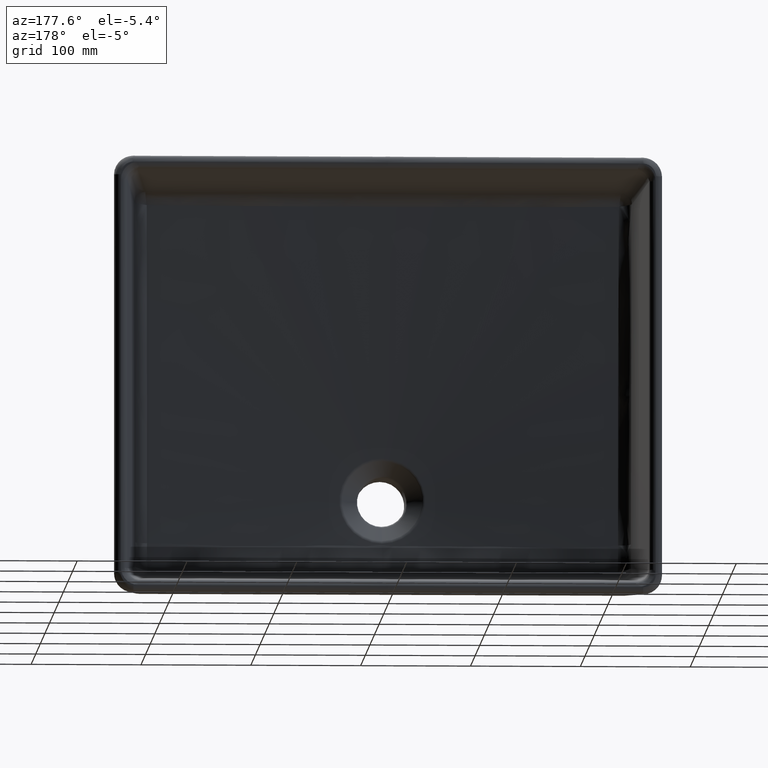
[diagram: clean part render]
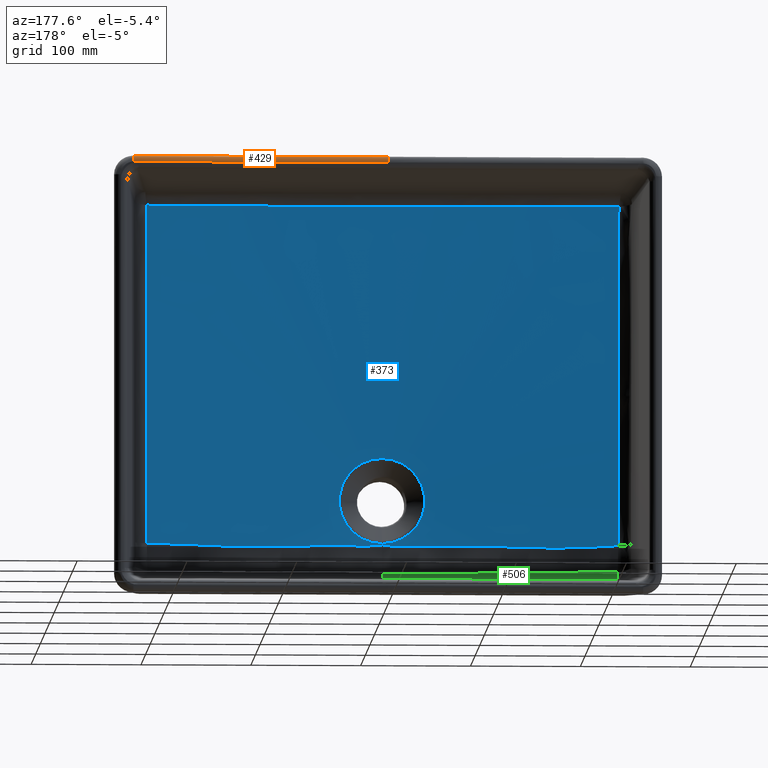
[diagram: same view with three faces highlighted in distinct colors, each labeled with its STEP entity id]
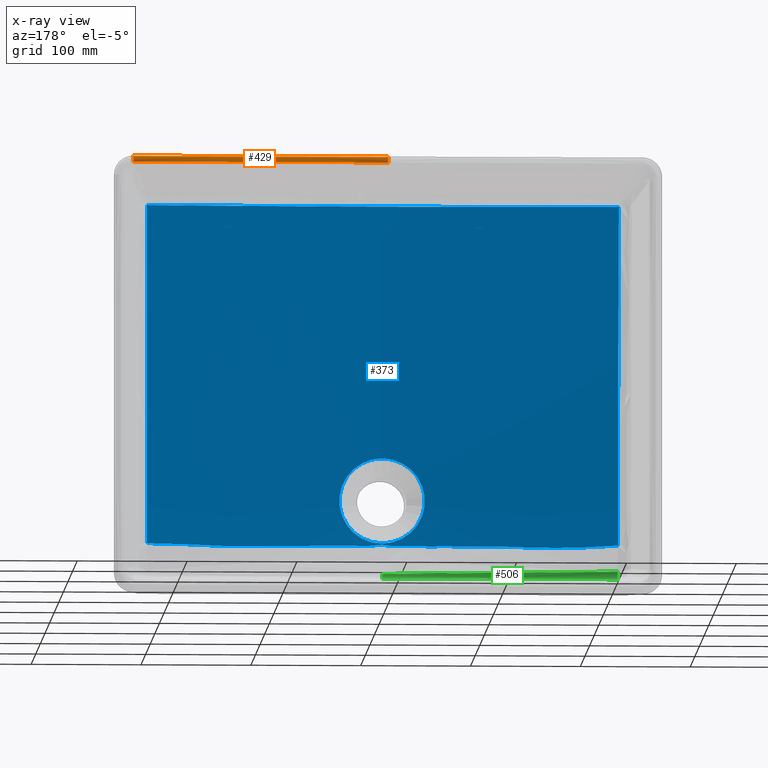
[diagram: x-ray of the same camera — body ghosted, the three highlighted faces saturated]
A machine part, auxiliary view with three faces highlighted in distinct colors.
The next image is the same camera in x-ray (body ghosted, the three faces saturated) — at least one of them is partly hidden behind the body in this view.
Their STEP definitions:

[orange] entity #429 — the highlighted face is a freeform B-spline surface patch.
#127=(
BOUNDED_SURFACE()
B_SPLINE_SURFACE(3,2,((#6086,#6087,#6088),(#6089,#6090,#6091),(#6092,#6093,
#6094),(#6095,#6096,#6097)),.UNSPECIFIED.,.F.,.F.,.F.)
B_SPLINE_SURFACE_WITH_KNOTS((4,4),(3,3),(0.,1.),(0.,1.),.UNSPECIFIED.)
GEOMETRIC_REPRESENTATION_ITEM()
RATIONAL_B_SPLINE_SURFACE(((1.,0.676554722314423,1.),(1.,0.676554722314423,
1.),(1.,0.676554722314423,1.),(1.,0.676554722314423,1.)))
REPRESENTATION_ITEM('')
SURFACE()
);
#309=CIRCLE('',#2127,5.95);
#322=CIRCLE('',#2144,5.95);
#429=ADVANCED_FACE('',(#573),#127,.T.);
#573=FACE_OUTER_BOUND('',#720,.T.);
#720=EDGE_LOOP('',(#1287,#1288,#1289,#1290));
#846=B_SPLINE_CURVE_WITH_KNOTS('',3,(#3566,#3567,#3568,#3569,#3570,#3571,
#3572,#3573,#3574,#3575),.UNSPECIFIED.,.F.,.F.,(4,3,3,4),(0.,0.0512897630446398,
0.256448815223199,1.),.UNSPECIFIED.);
#944=B_SPLINE_CURVE_WITH_KNOTS('',1,(#6002,#6003),.UNSPECIFIED.,.F.,.F.,
(2,2),(0.,1.),.UNSPECIFIED.);
#1287=ORIENTED_EDGE('',*,*,#1924,.F.);
#1288=ORIENTED_EDGE('',*,*,#1852,.F.);
#1289=ORIENTED_EDGE('',*,*,#1985,.F.);
#1290=ORIENTED_EDGE('',*,*,#1978,.F.);
#1674=VERTEX_POINT('',#3562);
#1675=VERTEX_POINT('',#3565);
#1722=VERTEX_POINT('',#4703);
#1761=VERTEX_POINT('',#6004);
#1852=EDGE_CURVE('',#1675,#1674,#846,.T.);
#1924=EDGE_CURVE('',#1674,#1722,#309,.T.);
#1978=EDGE_CURVE('',#1722,#1761,#944,.T.);
#1985=EDGE_CURVE('',#1761,#1675,#322,.T.);
#2127=AXIS2_PLACEMENT_3D('',#4811,#2286,#2287);
#2144=AXIS2_PLACEMENT_3D('',#6085,#2325,#2326);
#2286=DIRECTION('',(-1.,0.,0.));
#2287=DIRECTION('',(0.,0.,1.));
#2325=DIRECTION('',(1.,0.,0.));
#2326=DIRECTION('',(0.,0.,-1.));
#3562=CARTESIAN_POINT('',(2.77555756156289E-014,-6.45305712179725,399.452450173113));
#3565=CARTESIAN_POINT('',(232.015109761882,-6.45305655584847,399.452443441413));
#3566=CARTESIAN_POINT('',(232.015109761882,-6.45305655584847,399.452443441413));
#3567=CARTESIAN_POINT('',(228.048443079208,-6.45305655584847,399.452443441413));
#3568=CARTESIAN_POINT('',(224.081776396535,-6.45305712179725,399.452450173113));
#3569=CARTESIAN_POINT('',(220.11510971386,-6.45305712179725,399.452450173113));
#3570=CARTESIAN_POINT('',(204.248443047193,-6.45305712179725,399.452450173113));
#3571=CARTESIAN_POINT('',(188.381776380527,-6.45305712179725,399.452450173113));
#3572=CARTESIAN_POINT('',(172.51510971386,-6.45305712179725,399.452450173113));
#3573=CARTESIAN_POINT('',(115.010073142573,-6.45305712179725,399.452450173113));
#3574=CARTESIAN_POINT('',(57.5050365712867,-6.45305712179725,399.452450173113));
#3575=CARTESIAN_POINT('',(2.77555756156289E-014,-6.45305712179725,399.452450173113));
#4703=CARTESIAN_POINT('',(0.,0.,393.523754403178));
#4811=CARTESIAN_POINT('',(-2.77555756156289E-014,-5.95,393.523754403198));
#6002=CARTESIAN_POINT('',(-4.16333634234434E-014,0.,393.523754403198));
#6003=CARTESIAN_POINT('',(232.01510971386,0.,393.523754403198));
#6004=CARTESIAN_POINT('',(232.01510971386,-1.61333025574148E-015,393.523754403158));
#6085=CARTESIAN_POINT('',(232.01510971386,-5.95,393.523754403198));
#6086=CARTESIAN_POINT('',(232.01510971386,8.67361737988404E-016,393.523754403198));
#6087=CARTESIAN_POINT('',(232.01510971386,1.0842021724855E-015,400.));
#6088=CARTESIAN_POINT('',(232.01510971386,-6.45305712179725,399.452450173113));
#6089=CARTESIAN_POINT('',(154.67673980924,8.67361737988404E-016,393.523754403198));
#6090=CARTESIAN_POINT('',(154.67673980924,-1.00619430194029E-010,400.));
#6091=CARTESIAN_POINT('',(154.67673980924,-6.45305712179725,399.452450173113));
#6092=CARTESIAN_POINT('',(77.3383699046198,0.,393.523754403198));
#6093=CARTESIAN_POINT('',(77.3383699046198,2.16840434497101E-016,400.));
#6094=CARTESIAN_POINT('',(77.3383699046198,-6.45305712179725,399.452450173113));
#6095=CARTESIAN_POINT('',(-2.77555756156289E-014,0.,393.523754403198));
#6096=CARTESIAN_POINT('',(-2.77555756156289E-014,2.16840434497101E-016,
400.));
#6097=CARTESIAN_POINT('',(-2.77555756156289E-014,-6.45305712179725,399.452450173113));

[blue] entity #373 — the highlighted conical surface has half-angle 87 deg.
#277=CONICAL_SURFACE('',#2101,192.1970630137,87.);
#282=FACE_BOUND('',#656,.T.);
#283=FACE_BOUND('',#657,.T.);
#300=CIRCLE('',#2100,38.8877275611464);
#373=ADVANCED_FACE('',(#282,#283),#277,.F.);
#656=EDGE_LOOP('',(#1008,#1009,#1010,#1011,#1012));
#657=EDGE_LOOP('',(#1013));
#808=B_SPLINE_CURVE_WITH_KNOTS('',3,(#2553,#2554,#2555,#2556,#2557,#2558,
#2559,#2560,#2561,#2562,#2563,#2564,#2565,#2566,#2567,#2568,#2569,#2570,
#2571,#2572,#2573,#2574,#2575,#2576,#2577,#2578,#2579,#2580,#2581,#2582,
#2583,#2584,#2585,#2586,#2587,#2588,#2589,#2590,#2591,#2592,#2593,#2594,
#2595,#2596,#2597,#2598,#2599,#2600,#2601,#2602,#2603,#2604,#2605,#2606,
#2607,#2608,#2609,#2610,#2611,#2612,#2613,#2614,#2615,#2616,#2617,#2618,
#2619,#2620,#2621,#2622,#2623,#2624,#2625,#2626,#2627,#2628,#2629,#2630,
#2631,#2632,#2633,#2634,#2635,#2636,#2637,#2638,#2639,#2640,#2641,#2642,
#2643,#2644,#2645,#2646,#2647,#2648,#2649,#2650,#2651,#2652,#2653,#2654,
#2655,#2656,#2657,#2658,#2659,#2660,#2661,#2662,#2663,#2664,#2665,#2666,
#2667,#2668,#2669,#2670,#2671,#2672,#2673,#2674,#2675,#2676,#2677,#2678,
#2679,#2680,#2681,#2682,#2683,#2684),.UNSPECIFIED.,.F.,.F.,(4,2,2,2,2,2,
2,2,2,2,2,2,2,2,2,2,2,2,2,2,2,2,2,2,2,2,2,2,2,2,2,2,2,2,2,2,2,2,2,2,2,2,
2,2,2,2,2,2,2,2,2,2,2,2,2,2,2,2,2,2,2,2,2,2,2,4),(0.,0.001953125,0.00390625,
0.00585937500000001,0.00781250000000001,0.015625,0.0312500000000001,0.0468750000000002,
0.0546875000000002,0.0625000000000002,0.0703125000000003,0.0781250000000003,
0.0859375000000004,0.0937500000000004,0.109375000000001,0.117187500000001,
0.125000000000001,0.140625000000001,0.148437500000001,0.156250000000001,
0.164062500000001,0.171875000000001,0.179687500000001,0.187500000000001,
0.195312500000001,0.203125000000001,0.210937500000001,0.218750000000001,
0.226562500000001,0.234375000000001,0.242187500000001,0.250000000000002,
0.257812500000002,0.265625000000002,0.273437500000002,0.281250000000002,
0.296875000000002,0.304687500000002,0.312500000000002,0.343750000000003,
0.359375000000003,0.375000000000003,0.382812500000003,0.390625000000003,
0.406250000000003,0.408203125000003,0.409179687500003,0.410156250000003,
0.412109375000003,0.414062500000003,0.417968750000003,0.421875000000004,
0.437500000000004,0.453125000000004,0.468750000000004,0.500000000000004,
0.562500000000005,0.593750000000006,0.609375000000006,0.617187500000006,
0.625000000000006,0.640625000000006,0.656250000000006,0.687500000000005,
0.750000000000004,1.),.UNSPECIFIED.);
#809=B_SPLINE_CURVE_WITH_KNOTS('',3,(#2687,#2688,#2689,#2690,#2691,#2692),
 .UNSPECIFIED.,.F.,.F.,(4,2,4),(0.,0.5,1.),.UNSPECIFIED.);
#810=B_SPLINE_CURVE_WITH_KNOTS('',3,(#2694,#2695,#2696,#2697,#2698,#2699),
 .UNSPECIFIED.,.F.,.F.,(4,2,4),(0.,0.5,1.),.UNSPECIFIED.);
#811=B_SPLINE_CURVE_WITH_KNOTS('',3,(#2701,#2702,#2703,#2704,#2705,#2706),
 .UNSPECIFIED.,.F.,.F.,(4,2,4),(0.,0.5,1.),.UNSPECIFIED.);
#812=B_SPLINE_CURVE_WITH_KNOTS('',3,(#2708,#2709,#2710,#2711,#2712,#2713,
#2714,#2715,#2716,#2717,#2718,#2719,#2720,#2721,#2722,#2723,#2724,#2725,
#2726,#2727,#2728,#2729,#2730,#2731,#2732,#2733,#2734,#2735,#2736,#2737,
#2738,#2739,#2740,#2741,#2742,#2743,#2744,#2745,#2746,#2747,#2748,#2749,
#2750,#2751,#2752,#2753,#2754,#2755,#2756,#2757,#2758,#2759,#2760,#2761,
#2762,#2763,#2764,#2765,#2766,#2767,#2768,#2769,#2770,#2771,#2772,#2773,
#2774,#2775,#2776,#2777,#2778,#2779,#2780,#2781,#2782,#2783,#2784,#2785,
#2786,#2787,#2788,#2789,#2790,#2791,#2792,#2793,#2794,#2795,#2796,#2797,
#2798,#2799,#2800,#2801,#2802,#2803,#2804,#2805,#2806,#2807,#2808,#2809,
#2810,#2811,#2812,#2813,#2814,#2815,#2816,#2817,#2818,#2819,#2820,#2821,
#2822,#2823,#2824,#2825,#2826,#2827,#2828,#2829,#2830,#2831,#2832,#2833,
#2834,#2835,#2836,#2837,#2838,#2839,#2840,#2841,#2842,#2843,#2844,#2845,
#2846,#2847,#2848,#2849,#2850,#2851,#2852,#2853,#2854,#2855,#2856,#2857,
#2858,#2859,#2860,#2861,#2862,#2863,#2864,#2865,#2866,#2867,#2868,#2869,
#2870,#2871,#2872,#2873,#2874,#2875,#2876,#2877),.UNSPECIFIED.,.F.,.F.,
(4,2,2,2,2,2,2,2,2,2,2,2,2,2,2,2,2,2,2,2,2,2,2,2,2,2,2,2,2,2,2,2,2,2,2,
2,2,2,2,2,2,2,2,2,2,2,2,2,2,2,2,2,2,2,2,2,2,2,2,2,2,1,2,2,2,1,2,2,1,2,2,
1,2,2,2,2,2,2,2,2,1,1,2,2,2,2,1,1,4),(0.,0.00195312499999989,0.00292968749999984,
0.00390624999999978,0.00585937499999968,0.00781249999999957,0.0117187499999994,
0.0156249999999992,0.0312499999999984,0.0624999999999968,0.0937499999999951,
0.109374999999994,0.124999999999993,0.140624999999993,0.156249999999992,
0.171874999999991,0.18749999999999,0.203124999999989,0.218749999999988,
0.234374999999987,0.249999999999987,0.265624999999986,0.281249999999985,
0.312499999999983,0.320312499999983,0.324218749999982,0.328124999999982,
0.330078124999982,0.332031249999982,0.333984374999982,0.335937499999982,
0.343749999999982,0.359374999999983,0.367187499999983,0.374999999999983,
0.382812499999983,0.390624999999983,0.398437499999983,0.402343749999983,
0.406249999999983,0.414062499999983,0.417968749999983,0.421874999999983,
0.429687499999983,0.437499999999983,0.499999999999983,0.515624999999984,
0.531249999999984,0.546874999999984,0.554687499999984,0.558593749999984,
0.559570312499984,0.560546874999984,0.562499999999984,0.570312499999984,
0.578124999999984,0.593749999999984,0.624999999999983,0.749999999999984,
0.781249999999984,0.796874999999985,0.800781249999985,0.802734374999985,
0.804687499999985,0.808593749999985,0.812499999999986,0.828124999999987,
0.843749999999988,0.851562499999989,0.853515624999989,0.855468749999989,
0.859374999999989,0.86718749999999,0.87499999999999,0.906249999999992,0.914062499999992,
0.921874999999992,0.925781249999993,0.929687499999993,0.931640624999993,
0.933593749999993,0.937499999999994,0.945312499999995,0.953124999999995,
0.968749999999997,0.972656249999997,0.976562499999998,0.984374999999998,
1.),.UNSPECIFIED.);
#1008=ORIENTED_EDGE('',*,*,#1794,.T.);
#1009=ORIENTED_EDGE('',*,*,#1795,.T.);
#1010=ORIENTED_EDGE('',*,*,#1796,.T.);
#1011=ORIENTED_EDGE('',*,*,#1797,.T.);
#1012=ORIENTED_EDGE('',*,*,#1798,.F.);
#1013=ORIENTED_EDGE('',*,*,#1799,.T.);
#1618=VERTEX_POINT('',#2685);
#1619=VERTEX_POINT('',#2686);
#1620=VERTEX_POINT('',#2693);
#1621=VERTEX_POINT('',#2700);
#1622=VERTEX_POINT('',#2707);
#1623=VERTEX_POINT('',#2879);
#1794=EDGE_CURVE('',#1618,#1619,#808,.T.);
#1795=EDGE_CURVE('',#1619,#1620,#809,.T.);
#1796=EDGE_CURVE('',#1620,#1621,#810,.T.);
#1797=EDGE_CURVE('',#1621,#1622,#811,.T.);
#1798=EDGE_CURVE('',#1618,#1622,#812,.T.);
#1799=EDGE_CURVE('',#1623,#1623,#300,.T.);
#2100=AXIS2_PLACEMENT_3D('',#2878,#2214,#2215);
#2101=AXIS2_PLACEMENT_3D('',#2880,#2216,#2217);
#2214=DIRECTION('',(0.,-1.,0.));
#2215=DIRECTION('',(0.,0.,-1.));
#2216=DIRECTION('',(0.,1.,0.));
#2217=DIRECTION('',(0.,1.44010247394593E-018,-1.));
#2553=CARTESIAN_POINT('',(0.,-134.567635820949,56.9999999999974));
#2554=CARTESIAN_POINT('',(-0.188327909781806,-134.567380749252,56.9951329420847));
#2555=CARTESIAN_POINT('',(-0.2825133867208,-134.567253236628,56.9934480152112));
#2556=CARTESIAN_POINT('',(-0.565068989445242,-134.566870730703,56.9891419209462));
#2557=CARTESIAN_POINT('',(-0.706358199042492,-134.566679503889,56.9877374904094));
#2558=CARTESIAN_POINT('',(-0.988943566903706,-134.566297102514,56.9864256104259));
#2559=CARTESIAN_POINT('',(-0.95417549232369,-134.566092733674,56.9817856203177));
#2560=CARTESIAN_POINT('',(-1.17049188225408,-134.563361890491,56.9353987562105));
#2561=CARTESIAN_POINT('',(-1.36443126385809,-134.560853929907,56.893414590293));
#2562=CARTESIAN_POINT('',(-2.24709455687947,-134.549498935938,56.710471353826));
#2563=CARTESIAN_POINT('',(-2.7880953438631,-134.542812049751,56.6187832843759));
#2564=CARTESIAN_POINT('',(-4.45702751310007,-134.52028465805,56.3253588007187));
#2565=CARTESIAN_POINT('',(-5.5741898008769,-134.504247706267,56.1548780177235));
#2566=CARTESIAN_POINT('',(-7.81504372496827,-134.47022011716,55.8629644513235));
#2567=CARTESIAN_POINT('',(-8.93276089504205,-134.449980745618,55.6961488055026));
#2568=CARTESIAN_POINT('',(-10.6100623280195,-134.426578817874,55.6444215077947));
#2569=CARTESIAN_POINT('',(-11.1874452880377,-134.422854073938,55.7229319953258));
#2570=CARTESIAN_POINT('',(-12.3172154334065,-134.413335026646,55.8562425740149));
#2571=CARTESIAN_POINT('',(-12.8756317178228,-134.408341043051,55.9277700133753));
#2572=CARTESIAN_POINT('',(-13.9952659110038,-134.39777396284,56.0825289338266));
#2573=CARTESIAN_POINT('',(-14.5736565450941,-134.393972081524,56.2081488331528));
#2574=CARTESIAN_POINT('',(-15.6974549659085,-134.376749095737,56.2749067853455));
#2575=CARTESIAN_POINT('',(-16.2204004067568,-134.359117498022,56.1191315457942));
#2576=CARTESIAN_POINT('',(-17.3163592228998,-134.326190100013,55.8885869890438));
#2577=CARTESIAN_POINT('',(-17.8785335965103,-134.30936371747,55.7797802820438));
#2578=CARTESIAN_POINT('',(-18.9810241801609,-134.275729003665,55.5687339617694));
#2579=CARTESIAN_POINT('',(-19.4945102440763,-134.25764961772,55.4260120187363));
#2580=CARTESIAN_POINT('',(-21.1487429279071,-134.222814659441,55.4860339822792));
#2581=CARTESIAN_POINT('',(-22.344353188904,-134.22518735482,56.1725991853929));
#2582=CARTESIAN_POINT('',(-23.9460294479118,-134.171512365477,55.9077436632064));
#2583=CARTESIAN_POINT('',(-24.4804169409758,-134.150165515797,55.7493565522149));
#2584=CARTESIAN_POINT('',(-25.5850867218057,-134.113384547852,55.5979556731441));
#2585=CARTESIAN_POINT('',(-26.1592908460279,-134.099845825457,55.6515596355836));
#2586=CARTESIAN_POINT('',(-27.8590089283591,-134.057843863151,55.7968586372309));
#2587=CARTESIAN_POINT('',(-28.9673098466842,-134.029797388489,55.9118323628055));
#2588=CARTESIAN_POINT('',(-30.689507953854,-133.985239022528,56.1230396248424));
#2589=CARTESIAN_POINT('',(-31.2362389685354,-133.965852735496,56.074258607668));
#2590=CARTESIAN_POINT('',(-32.3349347542512,-133.924235298554,55.9212075157635));
#2591=CARTESIAN_POINT('',(-32.8997839567046,-133.903116415004,55.8549146418727));
#2592=CARTESIAN_POINT('',(-34.0206852089224,-133.860583735067,55.7195890813381));
#2593=CARTESIAN_POINT('',(-34.5791974115862,-133.839210824819,55.6533003171271));
#2594=CARTESIAN_POINT('',(-35.6831188871478,-133.797504757176,55.5463556195779));
#2595=CARTESIAN_POINT('',(-36.2495097631273,-133.779361025694,55.578674255602));
#2596=CARTESIAN_POINT('',(-37.3961433089403,-133.744433748812,55.7072593273074));
#2597=CARTESIAN_POINT('',(-37.9855638587725,-133.728175360565,55.8267272183704));
#2598=CARTESIAN_POINT('',(-39.0871782019183,-133.685713014282,55.7475442157326));
#2599=CARTESIAN_POINT('',(-39.6012339716978,-133.659308699638,55.5420473896158));
#2600=CARTESIAN_POINT('',(-40.6203799286635,-133.611366793898,55.2539342492056));
#2601=CARTESIAN_POINT('',(-41.1607245800294,-133.590681146151,55.2283199036975));
#2602=CARTESIAN_POINT('',(-42.3409183633495,-133.557041643387,55.5027876456767));
#2603=CARTESIAN_POINT('',(-42.9011782333926,-133.536975861684,55.5308839697797));
#2604=CARTESIAN_POINT('',(-44.0063927103719,-133.495340908653,55.5383326763074));
#2605=CARTESIAN_POINT('',(-44.5670253315713,-133.476205547477,55.6026065172033));
#2606=CARTESIAN_POINT('',(-45.6983881201488,-133.438135294615,55.7626449376875));
#2607=CARTESIAN_POINT('',(-46.2761323172471,-133.419725722088,55.8817999392102));
#2608=CARTESIAN_POINT('',(-47.3993691572674,-133.377292632676,55.9343809850287));
#2609=CARTESIAN_POINT('',(-47.9368410646214,-133.352378401832,55.8304415322774));
#2610=CARTESIAN_POINT('',(-49.040645000852,-133.302826649143,55.6687490265089));
#2611=CARTESIAN_POINT('',(-49.603297745409,-133.277657020974,55.5921037359639));
#2612=CARTESIAN_POINT('',(-50.7272879055011,-133.228381452282,55.4761230677782));
#2613=CARTESIAN_POINT('',(-51.287803869966,-133.203935214017,55.4259360859523));
#2614=CARTESIAN_POINT('',(-52.3719954484502,-133.154071708397,55.2561074726809));
#2615=CARTESIAN_POINT('',(-52.9213210759089,-133.131533920841,55.2551830368901));
#2616=CARTESIAN_POINT('',(-54.0511598738818,-133.09341588364,55.5229521667776));
#2617=CARTESIAN_POINT('',(-54.6168785092805,-133.074726095795,55.6771890113849));
#2618=CARTESIAN_POINT('',(-55.7399442775218,-133.035309259542,55.9241901436674));
#2619=CARTESIAN_POINT('',(-56.2847995083228,-133.011390651149,55.8968169155306));
#2620=CARTESIAN_POINT('',(-57.3751288869361,-132.960556149198,55.7484407165869));
#2621=CARTESIAN_POINT('',(-57.9273390368327,-132.934287804153,55.658329631795));
#2622=CARTESIAN_POINT('',(-59.0466558714528,-132.884836802114,55.6068221961325));
#2623=CARTESIAN_POINT('',(-59.6165262132835,-132.862129830745,55.6661308059353));
#2624=CARTESIAN_POINT('',(-61.3117201561265,-132.79374432422,55.8306816276905));
#2625=CARTESIAN_POINT('',(-62.4232416994136,-132.748682515193,55.9498516713625));
#2626=CARTESIAN_POINT('',(-64.1266541069777,-132.679555649473,56.1592395583645));
#2627=CARTESIAN_POINT('',(-64.6967520906376,-132.656048570296,56.2218004432812));
#2628=CARTESIAN_POINT('',(-65.8036896932838,-132.604498742498,56.136570758547));
#2629=CARTESIAN_POINT('',(-66.3560966004225,-132.577763950679,56.059841256895));
#2630=CARTESIAN_POINT('',(-69.16703946307,-132.444493740162,55.7802796815453));
#2631=CARTESIAN_POINT('',(-71.4161609234937,-132.337656136691,55.5843210108632));
#2632=CARTESIAN_POINT('',(-74.7936923992695,-132.177272170405,55.3424006618066));
#2633=CARTESIAN_POINT('',(-75.9087060778775,-132.123590392938,55.2401359124439));
#2634=CARTESIAN_POINT('',(-78.1767245521797,-132.02276035916,55.3889080494522));
#2635=CARTESIAN_POINT('',(-79.2965406970246,-131.973105548467,55.4807146357113));
#2636=CARTESIAN_POINT('',(-80.991054154153,-131.897618953387,55.6250204005457));
#2637=CARTESIAN_POINT('',(-81.5654072356041,-131.872708602213,55.7062395812039));
#2638=CARTESIAN_POINT('',(-82.6861579840099,-131.819658988667,55.6817466260929));
#2639=CARTESIAN_POINT('',(-83.2312720692931,-131.791436687565,55.5685015322622));
#2640=CARTESIAN_POINT('',(-84.8964414153951,-131.707183867866,55.3081293893367));
#2641=CARTESIAN_POINT('',(-85.9197364043255,-131.655340573159,55.1478523875682));
#2642=CARTESIAN_POINT('',(-87.5558950597983,-131.5727683067,54.9142316030177));
#2643=CARTESIAN_POINT('',(-87.6834796238389,-131.566335340305,54.8963724954198));
#2644=CARTESIAN_POINT('',(-87.7933755863478,-131.560798485528,54.8811834660576));
#2645=CARTESIAN_POINT('',(-87.816428903905,-131.559638299739,54.8780585730023));
#2646=CARTESIAN_POINT('',(-87.8353683245887,-131.558688793099,54.8756517988852));
#2647=CARTESIAN_POINT('',(-87.903518019174,-131.555470122162,54.8757269625149));
#2648=CARTESIAN_POINT('',(-88.115217013377,-131.545431717577,54.8743245326266));
#2649=CARTESIAN_POINT('',(-88.3282678749661,-131.535288983354,54.8713993516475));
#2650=CARTESIAN_POINT('',(-88.3575447081761,-131.53401403418,54.8762752357381));
#2651=CARTESIAN_POINT('',(-88.4247940755233,-131.531101562079,54.888156948203));
#2652=CARTESIAN_POINT('',(-88.7844758132381,-131.515539153233,54.9531418723261));
#2653=CARTESIAN_POINT('',(-89.2179142267309,-131.496800639148,55.0335630329215));
#2654=CARTESIAN_POINT('',(-89.8784274168138,-131.468259352306,55.1601545672897));
#2655=CARTESIAN_POINT('',(-90.1833132843318,-131.455091656379,55.2202751175085));
#2656=CARTESIAN_POINT('',(-91.5805117830753,-131.394767914215,55.501315872256));
#2657=CARTESIAN_POINT('',(-92.6699229916731,-131.337925004258,55.2813760724474));
#2658=CARTESIAN_POINT('',(-94.8994730623002,-131.230986462202,55.2728903387338));
#2659=CARTESIAN_POINT('',(-96.0198283782585,-131.180451823221,55.4285212723237));
#2660=CARTESIAN_POINT('',(-98.2468893613949,-131.077307321378,55.6324971042371));
#2661=CARTESIAN_POINT('',(-99.3733110789739,-131.025855340885,55.7839426924527));
#2662=CARTESIAN_POINT('',(-102.686069323521,-130.859013418464,55.4691205226894));
#2663=CARTESIAN_POINT('',(-104.928335685164,-130.746218112835,55.2780540982804));
#2664=CARTESIAN_POINT('',(-111.62071279868,-130.409892509711,54.7714832429712));
#2665=CARTESIAN_POINT('',(-116.094464791813,-130.188423446733,54.6767590549736));
#2666=CARTESIAN_POINT('',(-122.804173454871,-129.854977789585,54.578389713497));
#2667=CARTESIAN_POINT('',(-125.041032457858,-129.743885172519,54.5676209204196));
#2668=CARTESIAN_POINT('',(-128.396244788012,-129.577180956226,54.5743029275904));
#2669=CARTESIAN_POINT('',(-129.517031353665,-129.52148535357,54.5804728962216));
#2670=CARTESIAN_POINT('',(-131.190956676556,-129.43830029657,54.5962180030258));
#2671=CARTESIAN_POINT('',(-131.642634949157,-129.415906471798,54.6046811109398));
#2672=CARTESIAN_POINT('',(-132.58511626455,-129.3688793122,54.6049293503658));
#2673=CARTESIAN_POINT('',(-133.133448635912,-129.341302242197,54.5922616630376));
#2674=CARTESIAN_POINT('',(-135.010425737048,-129.246380561579,54.5191703546949));
#2675=CARTESIAN_POINT('',(-136.221160277792,-129.185059573102,54.4701231801726));
#2676=CARTESIAN_POINT('',(-138.456471316475,-129.071929316536,54.39055762545));
#2677=CARTESIAN_POINT('',(-139.574253294723,-129.015369853206,54.3545766398316));
#2678=CARTESIAN_POINT('',(-142.927860818992,-128.845671380185,54.2552337150257));
#2679=CARTESIAN_POINT('',(-145.163969124609,-128.732529967077,54.201677128005));
#2680=CARTESIAN_POINT('',(-151.872996221362,-128.39309243247,54.0784134741332));
#2681=CARTESIAN_POINT('',(-156.346533076114,-128.166768847835,54.0448507128726));
#2682=CARTESIAN_POINT('',(-178.713554134773,-127.035088224701,54.107356182729));
#2683=CARTESIAN_POINT('',(-196.603173022539,-126.129744385106,54.9150070419904));
#2684=CARTESIAN_POINT('',(-214.446860470697,-125.223646518846,56.1981985561139));
#2685=CARTESIAN_POINT('',(0.,-134.567635820949,56.9999999999974));
#2686=CARTESIAN_POINT('',(-214.446595354256,-125.22377786794,56.2018099168157));
#2687=CARTESIAN_POINT('',(-214.446756576993,-125.223651794542,56.1981910848274));
#2688=CARTESIAN_POINT('',(-214.419905352445,-125.729391802472,107.686053678433));
#2689=CARTESIAN_POINT('',(-214.441505703735,-125.207640371927,159.175984510018));
#2690=CARTESIAN_POINT('',(-214.602137476192,-122.674566108166,262.120073743934));
#2691=CARTESIAN_POINT('',(-214.744509913207,-120.768447005143,313.575731875306));
#2692=CARTESIAN_POINT('',(-214.924228163015,-118.659160253207,365.021292501268));
#2693=CARTESIAN_POINT('',(-214.924228163015,-118.659160253207,365.021292501268));
#2694=CARTESIAN_POINT('',(-214.924228163015,-118.659160253207,365.021292501268));
#2695=CARTESIAN_POINT('',(-143.304202634665,-121.014983527745,364.833292093221));
#2696=CARTESIAN_POINT('',(-71.6537462642721,-122.632570088209,364.73473164337));
#2697=CARTESIAN_POINT('',(71.6545759153869,-122.632558413468,364.734732370194));
#2698=CARTESIAN_POINT('',(143.304338079397,-121.014979072513,364.833292448758));
#2699=CARTESIAN_POINT('',(214.924228163015,-118.659160253207,365.021292501267));
#2700=CARTESIAN_POINT('',(214.924228163015,-118.659160253207,365.021292501267));
#2701=CARTESIAN_POINT('',(214.924228163015,-118.659160253207,365.021292501267));
#2702=CARTESIAN_POINT('',(214.744798753496,-120.765056993298,313.658414355429));
#2703=CARTESIAN_POINT('',(214.602585577264,-122.668337330495,262.285480824612));
#2704=CARTESIAN_POINT('',(214.441833017702,-125.201645315556,159.506931047958));
#2705=CARTESIAN_POINT('',(214.420029020229,-125.727494482626,108.099835832799));
#2706=CARTESIAN_POINT('',(214.446499295503,-125.228499752231,56.6946632462233));
#2707=CARTESIAN_POINT('',(214.44652198033,-125.22856915866,56.6943082023822));
#2708=CARTESIAN_POINT('',(7.06748074501828E-016,-134.5676358209,57.));
#2709=CARTESIAN_POINT('',(0.188475911803533,-134.567378999873,56.9950995628671));
#2710=CARTESIAN_POINT('',(0.282713778028861,-134.567207937094,56.9926495137444));
#2711=CARTESIAN_POINT('',(0.494748951887947,-134.56679158834,56.9871370272875));
#2712=CARTESIAN_POINT('',(0.565427323489174,-134.566642230967,56.9852995737729));
#2713=CARTESIAN_POINT('',(0.706784021243575,-134.566322455809,56.9816247505347));
#2714=CARTESIAN_POINT('',(0.82010083963237,-134.566042659733,56.9786789667231));
#2715=CARTESIAN_POINT('',(0.882908835275007,-134.565882524723,56.977046230009));
#2716=CARTESIAN_POINT('',(0.892663220888405,-134.565574367316,56.9713450471069));
#2717=CARTESIAN_POINT('',(1.05768697371817,-134.56390728132,56.9441371255467));
#2718=CARTESIAN_POINT('',(1.17828949054625,-134.562646464028,56.923718040687));
#2719=CARTESIAN_POINT('',(1.65436707853707,-134.557360286378,56.8420179292946));
#2720=CARTESIAN_POINT('',(2.05416770910495,-134.552558747201,56.7733256923708));
#2721=CARTESIAN_POINT('',(2.72780681178177,-134.544056988549,56.6616631836726));
#2722=CARTESIAN_POINT('',(3.04515187900609,-134.539849120327,56.6105875459504));
#2723=CARTESIAN_POINT('',(4.53450950232086,-134.519567647159,56.3789814918236));
#2724=CARTESIAN_POINT('',(5.59508913522857,-134.503569217889,56.2399194645694));
#2725=CARTESIAN_POINT('',(8.96686675161005,-134.449955785284,55.863923222875));
#2726=CARTESIAN_POINT('',(11.2253221370591,-134.410212764451,55.7079086733423));
#2727=CARTESIAN_POINT('',(15.7474139948119,-134.328014024487,55.5831398793498));
#2728=CARTESIAN_POINT('',(18.0092993148189,-134.282874403006,55.5779587515977));
#2729=CARTESIAN_POINT('',(21.4018223769637,-134.205844486689,55.5850441419749));
#2730=CARTESIAN_POINT('',(22.5362849247449,-134.177218137818,55.5703766045355));
#2731=CARTESIAN_POINT('',(24.7601153303004,-134.118169456188,55.5419042166236));
#2732=CARTESIAN_POINT('',(25.8901212079121,-134.094191471927,55.6410681940871));
#2733=CARTESIAN_POINT('',(28.18339400587,-134.047593257012,55.9510889757567));
#2734=CARTESIAN_POINT('',(29.3470415267908,-134.025046986809,56.1739803824576));
#2735=CARTESIAN_POINT('',(31.5094370722458,-133.938631199728,55.824197640216));
#2736=CARTESIAN_POINT('',(32.5624004826334,-133.888289672329,55.5425409745437));
#2737=CARTESIAN_POINT('',(34.805442408129,-133.806441616453,55.4064032154094));
#2738=CARTESIAN_POINT('',(35.9856134414645,-133.773079559433,55.5128738671957));
#2739=CARTESIAN_POINT('',(38.2434035001781,-133.702639042302,55.6540721123579));
#2740=CARTESIAN_POINT('',(39.3652244753128,-133.667450439608,55.7427045151638));
#2741=CARTESIAN_POINT('',(41.6344839800461,-133.59547506152,55.9588305608021));
#2742=CARTESIAN_POINT('',(42.7889516040703,-133.559432668325,56.1127928618318));
#2743=CARTESIAN_POINT('',(45.0051581905275,-133.466111697732,55.9434324858469));
#2744=CARTESIAN_POINT('',(46.1194402940287,-133.415832146072,55.8073488871444));
#2745=CARTESIAN_POINT('',(48.3723382160355,-133.317246987987,55.62429264767));
#2746=CARTESIAN_POINT('',(49.5030098218588,-133.267803821372,55.5475629132757));
#2747=CARTESIAN_POINT('',(51.7099173422918,-133.17165720761,55.4255054452384));
#2748=CARTESIAN_POINT('',(52.8408386749714,-133.129884806083,55.5124527076211));
#2749=CARTESIAN_POINT('',(55.1331937144492,-133.049593503497,55.8270702240594));
#2750=CARTESIAN_POINT('',(56.2878332868248,-133.011410495294,56.072605682016));
#2751=CARTESIAN_POINT('',(58.5006313532896,-132.911404154202,55.9401920504904));
#2752=CARTESIAN_POINT('',(59.5713982392707,-132.852489605339,55.6493999317403));
#2753=CARTESIAN_POINT('',(62.8623388008086,-132.690747361324,55.2325726798006));
#2754=CARTESIAN_POINT('',(65.246485419111,-132.625715082017,56.1214402845915));
#2755=CARTESIAN_POINT('',(67.9968473894216,-132.490031339613,55.7951704975629));
#2756=CARTESIAN_POINT('',(68.5599983260366,-132.460337204053,55.6851439670975));
#2757=CARTESIAN_POINT('',(69.5459041330038,-132.40942966944,55.5282720812185));
#2758=CARTESIAN_POINT('',(69.8922532400628,-132.391512132113,55.4737396504859));
#2759=CARTESIAN_POINT('',(70.6203783185443,-132.353748618461,55.3601941406903));
#2760=CARTESIAN_POINT('',(70.9639759948325,-132.335865271072,55.3070257496008));
#2761=CARTESIAN_POINT('',(71.2153267104409,-132.322779385594,55.2683864799569));
#2762=CARTESIAN_POINT('',(71.2661999469789,-132.320132225407,55.2606603748337));
#2763=CARTESIAN_POINT('',(71.3021259689705,-132.318277643635,55.2555147387313));
#2764=CARTESIAN_POINT('',(71.4657643069763,-132.310880470887,55.2545575475066));
#2765=CARTESIAN_POINT('',(71.7476007233333,-132.298010726714,55.2504080250653));
#2766=CARTESIAN_POINT('',(71.805860285286,-132.295524584926,55.2532435917417));
#2767=CARTESIAN_POINT('',(72.1637297564004,-132.280813876452,55.2836390033466));
#2768=CARTESIAN_POINT('',(72.3094955670942,-132.274808373939,55.2960179822356));
#2769=CARTESIAN_POINT('',(73.011774405608,-132.245836914211,55.3556537577717));
#2770=CARTESIAN_POINT('',(73.5733974472935,-132.222622369426,55.4055853918214));
#2771=CARTESIAN_POINT('',(75.2575703737704,-132.152881168555,55.5631411936277));
#2772=CARTESIAN_POINT('',(76.3741212135585,-132.106843143654,55.6873809301534));
#2773=CARTESIAN_POINT('',(78.0628582719414,-132.035849181328,55.8672650435399));
#2774=CARTESIAN_POINT('',(78.6187399173899,-132.006486581426,55.7699817841862));
#2775=CARTESIAN_POINT('',(79.7361426927683,-131.949013765595,55.62185420717));
#2776=CARTESIAN_POINT('',(80.2945183627617,-131.920090318033,55.5458310744161));
#2777=CARTESIAN_POINT('',(81.4123799659857,-131.862304507006,55.4023027909507));
#2778=CARTESIAN_POINT('',(81.9723569812414,-131.833514455222,55.3368915411834));
#2779=CARTESIAN_POINT('',(83.0912243115184,-131.775551278542,55.2004729761741));
#2780=CARTESIAN_POINT('',(83.6453452717865,-131.744625202025,55.0839672444357));
#2781=CARTESIAN_POINT('',(84.771582024961,-131.698782282261,55.2425611892661));
#2782=CARTESIAN_POINT('',(85.3260564757281,-131.675983421189,55.3200407217155));
#2783=CARTESIAN_POINT('',(86.1627500392236,-131.641569132062,55.4444955524761));
#2784=CARTESIAN_POINT('',(86.440298772925,-131.630099505341,55.4857702806072));
#2785=CARTESIAN_POINT('',(87.0047236844904,-131.606664817976,55.5696866288517));
#2786=CARTESIAN_POINT('',(87.2772384811476,-131.591573079605,55.5117957094463));
#2787=CARTESIAN_POINT('',(88.1113901657212,-131.546816150247,55.3749770425505));
#2788=CARTESIAN_POINT('',(88.6674853357356,-131.516833436867,55.2837756513077));
#2789=CARTESIAN_POINT('',(89.5016197411344,-131.471651113905,55.146991432025));
#2790=CARTESIAN_POINT('',(89.7758054980613,-131.455781086046,55.0788417586403));
#2791=CARTESIAN_POINT('',(90.3401182494364,-131.429796270302,55.0977754166147));
#2792=CARTESIAN_POINT('',(90.6219798897307,-131.417459467329,55.1230126188526));
#2793=CARTESIAN_POINT('',(91.4660261733534,-131.379498152465,55.1760286429653));
#2794=CARTESIAN_POINT('',(92.0279006586706,-131.35081181788,55.1296615299974));
#2795=CARTESIAN_POINT('',(93.1514430827925,-131.293546199415,55.0415282154817));
#2796=CARTESIAN_POINT('',(93.7157880920605,-131.267204761513,55.0568900646665));
#2797=CARTESIAN_POINT('',(98.7888441324524,-131.024308189843,55.0574660618622));
#2798=CARTESIAN_POINT('',(103.298082376953,-130.802916389979,54.9882732658415));
#2799=CARTESIAN_POINT('',(108.933775085666,-130.531189157287,55.0941718684765));
#2800=CARTESIAN_POINT('',(110.059985700296,-130.473435704598,55.0240551905073));
#2801=CARTESIAN_POINT('',(112.313322067738,-130.36015483119,54.9489005239373));
#2802=CARTESIAN_POINT('',(113.440178422657,-130.303776391185,54.9204626064472));
#2803=CARTESIAN_POINT('',(115.694098720379,-130.191222069313,54.87219452746));
#2804=CARTESIAN_POINT('',(116.821157917538,-130.134949120643,54.8497396713524));
#2805=CARTESIAN_POINT('',(118.511897949844,-130.050969105365,54.8304648778693));
#2806=CARTESIAN_POINT('',(119.075475831595,-130.022917698958,54.8228134162274));
#2807=CARTESIAN_POINT('',(119.920869548693,-129.980919332312,54.8141588887537));
#2808=CARTESIAN_POINT('',(120.169521679637,-129.968551525091,54.8112522518355));
#2809=CARTESIAN_POINT('',(120.619230507215,-129.946273917723,54.8087732461044));
#2810=CARTESIAN_POINT('',(120.712279860339,-129.941665306506,54.8082991026182));
#2811=CARTESIAN_POINT('',(120.759269621427,-129.939305089342,54.8071344544252));
#2812=CARTESIAN_POINT('',(120.767692713219,-129.938922247369,54.8080590920017));
#2813=CARTESIAN_POINT('',(120.906733331141,-129.931978834772,54.8057590752117));
#2814=CARTESIAN_POINT('',(121.136741222736,-129.920476549703,54.8015303093898));
#2815=CARTESIAN_POINT('',(121.886118231378,-129.882859821431,54.7839124715528));
#2816=CARTESIAN_POINT('',(122.412522739134,-129.856431365114,54.7717534341696));
#2817=CARTESIAN_POINT('',(123.535377839965,-129.800031611661,54.7456883380768));
#2818=CARTESIAN_POINT('',(124.096832214966,-129.771904790937,54.7350988725726));
#2819=CARTESIAN_POINT('',(125.781272728123,-129.687527885408,54.7045726869351));
#2820=CARTESIAN_POINT('',(126.904257474768,-129.631286655795,54.6858562151876));
#2821=CARTESIAN_POINT('',(130.273587773138,-129.463281782656,54.6554858576766));
#2822=CARTESIAN_POINT('',(132.519931243888,-129.351425741727,54.6456341284031));
#2823=CARTESIAN_POINT('',(143.751162337381,-128.793120855626,54.6606004753125));
#2824=CARTESIAN_POINT('',(152.73575845883,-128.351739472334,54.9524154799651));
#2825=CARTESIAN_POINT('',(163.951274011504,-127.796384272752,55.5503341956975));
#2826=CARTESIAN_POINT('',(166.193255111181,-127.685387982474,55.6930123399695));
#2827=CARTESIAN_POINT('',(169.555925213954,-127.518217076123,55.9075074751246));
#2828=CARTESIAN_POINT('',(170.675722610479,-127.462952750247,56.0117529558878));
#2829=CARTESIAN_POINT('',(172.079581278071,-127.391581259955,56.0182787124712));
#2830=CARTESIAN_POINT('',(172.500738717879,-127.370166625841,56.0202361042163));
#2831=CARTESIAN_POINT('',(172.921895919293,-127.348747258043,56.0221929927772));
#2832=CARTESIAN_POINT('',(173.202667334185,-127.334466632784,56.0234974732956));
#2833=CARTESIAN_POINT('',(173.309568133749,-127.329029153566,56.0239941110437));
#2834=CARTESIAN_POINT('',(173.826786494845,-127.302718495528,56.0263967281467));
#2835=CARTESIAN_POINT('',(174.097032305121,-127.288967791621,56.0275943826033));
#2836=CARTESIAN_POINT('',(174.70776918756,-127.257886372345,56.030196315063));
#2837=CARTESIAN_POINT('',(176.229019387875,-127.180450636377,56.036379566539));
#2838=CARTESIAN_POINT('',(177.722309614092,-127.104356772475,56.0409559471037));
#2839=CARTESIAN_POINT('',(180.075785451059,-126.984337077929,56.0462262560954));
#2840=CARTESIAN_POINT('',(181.231208448191,-126.925368447649,56.0479934755835));
#2841=CARTESIAN_POINT('',(182.75890333809,-126.847465814415,56.0572904437002));
#2842=CARTESIAN_POINT('',(183.361923242723,-126.816724467266,56.062123121706));
#2843=CARTESIAN_POINT('',(183.923043780898,-126.788132780138,56.0681536329979));
#2844=CARTESIAN_POINT('',(184.144140049638,-126.776868113569,56.0706616527286));
#2845=CARTESIAN_POINT('',(184.343138897182,-126.766729978821,56.0730081835159));
#2846=CARTESIAN_POINT('',(184.882966008293,-126.739224097982,56.0793133905457));
#2847=CARTESIAN_POINT('',(185.903187378674,-126.687230214719,56.0912267133354));
#2848=CARTESIAN_POINT('',(186.7451104937,-126.644300497255,56.1010516125992));
#2849=CARTESIAN_POINT('',(187.709187708645,-126.595132204484,56.1122991038867));
#2850=CARTESIAN_POINT('',(188.066678649826,-126.576893151093,56.11629361551));
#2851=CARTESIAN_POINT('',(190.130743268734,-126.471604016657,56.1420840188687));
#2852=CARTESIAN_POINT('',(192.857821274299,-126.332479817015,56.1821763033167));
#2853=CARTESIAN_POINT('',(196.35528006317,-126.153975839002,56.2526866697383));
#2854=CARTESIAN_POINT('',(197.069599126698,-126.117514439918,56.2678398889682));
#2855=CARTESIAN_POINT('',(198.52789196514,-126.043066634528,56.3002448113015));
#2856=CARTESIAN_POINT('',(199.151338175883,-126.011225383374,56.3141890220333));
#2857=CARTESIAN_POINT('',(199.751838523622,-125.980543761805,56.3268999644319));
#2858=CARTESIAN_POINT('',(199.905411930111,-125.972694757593,56.3300213098969));
#2859=CARTESIAN_POINT('',(200.119372006529,-125.961755336221,56.3340339533758));
#2860=CARTESIAN_POINT('',(200.096357197783,-125.962932668535,56.333603075648));
#2861=CARTESIAN_POINT('',(200.554585705571,-125.939479022416,56.3402049220984));
#2862=CARTESIAN_POINT('',(200.594361541854,-125.937443099032,56.340793445078));
#2863=CARTESIAN_POINT('',(200.713003210844,-125.931373585653,56.3428038028332));
#2864=CARTESIAN_POINT('',(200.916602141126,-125.920960279204,56.3464956923448));
#2865=CARTESIAN_POINT('',(201.571121289097,-125.887497534165,56.3598435338956));
#2866=CARTESIAN_POINT('',(202.439774763453,-125.843095966392,56.3793944784774));
#2867=CARTESIAN_POINT('',(203.871434524132,-125.769898257239,56.4126564735166));
#2868=CARTESIAN_POINT('',(204.778079324109,-125.72353303391,56.4342639623154));
#2869=CARTESIAN_POINT('',(207.063293620433,-125.606620448238,56.4882803149657));
#2870=CARTESIAN_POINT('',(208.238181537336,-125.546461118266,56.5157955925219));
#2871=CARTESIAN_POINT('',(209.271056148673,-125.493560450896,56.5396166404002));
#2872=CARTESIAN_POINT('',(209.500853739833,-125.481788527225,56.544805921549));
#2873=CARTESIAN_POINT('',(209.584351011054,-125.477513150234,56.5468931912681));
#2874=CARTESIAN_POINT('',(209.791784881939,-125.466896901392,56.5526022924572));
#2875=CARTESIAN_POINT('',(210.851113067383,-125.412698726235,56.5839666355259));
#2876=CARTESIAN_POINT('',(212.745364620986,-125.315762557483,56.6417546378765));
#2877=CARTESIAN_POINT('',(214.446536201838,-125.228638998545,56.6939529049828));
#2878=CARTESIAN_POINT('',(0.,-134.625927549427,97.));
#2879=CARTESIAN_POINT('',(0.,-134.625927549427,58.1122724388536));
#2880=CARTESIAN_POINT('',(0.,-126.591325735,97.));

[green] entity #506 — the highlighted face is a freeform B-spline surface patch.
#191=(
BOUNDED_SURFACE()
B_SPLINE_SURFACE(3,2,((#7598,#7599,#7600),(#7601,#7602,#7603),(#7604,#7605,
#7606),(#7607,#7608,#7609),(#7610,#7611,#7612),(#7613,#7614,#7615)),
 .UNSPECIFIED.,.F.,.F.,.F.)
B_SPLINE_SURFACE_WITH_KNOTS((4,2,4),(3,3),(0.,0.5,1.),(0.,1.),
 .UNSPECIFIED.)
GEOMETRIC_REPRESENTATION_ITEM()
RATIONAL_B_SPLINE_SURFACE(((1.,0.751891366395828,1.),(1.,0.777955362387749,
1.),(1.,0.803607616282041,1.),(1.,0.848385590845662,1.),(1.,0.868229495731639,
1.),(1.,0.868162153449095,1.)))
REPRESENTATION_ITEM('')
SURFACE()
);
#506=ADVANCED_FACE('',(#650),#191,.T.);
#650=FACE_OUTER_BOUND('',#797,.T.);
#797=EDGE_LOOP('',(#1594,#1595,#1596,#1597));
#804=B_SPLINE_CURVE_WITH_KNOTS('',3,(#2517,#2518,#2519,#2520,#2521,#2522),
 .UNSPECIFIED.,.F.,.F.,(4,2,4),(0.,0.5,1.),.UNSPECIFIED.);
#885=B_SPLINE_CURVE_WITH_KNOTS('',3,(#4369,#4370,#4371,#4372,#4373,#4374),
 .UNSPECIFIED.,.F.,.F.,(4,2,4),(0.,0.5,1.),.UNSPECIFIED.);
#994=B_SPLINE_CURVE_WITH_KNOTS('',3,(#7543,#7544,#7545,#7546),
 .UNSPECIFIED.,.F.,.F.,(4,4),(0.,1.),.UNSPECIFIED.);
#1594=ORIENTED_EDGE('',*,*,#2083,.T.);
#1595=ORIENTED_EDGE('',*,*,#1788,.F.);
#1596=ORIENTED_EDGE('',*,*,#2085,.F.);
#1597=ORIENTED_EDGE('',*,*,#1899,.F.);
#1612=VERTEX_POINT('',#2516);
#1613=VERTEX_POINT('',#2523);
#1711=VERTEX_POINT('',#4375);
#1712=VERTEX_POINT('',#4376);
#1788=EDGE_CURVE('',#1612,#1613,#804,.T.);
#1899=EDGE_CURVE('',#1711,#1712,#885,.T.);
#2083=EDGE_CURVE('',#1711,#1613,#994,.T.);
#2085=EDGE_CURVE('',#1712,#1612,#2094,.T.);
#2094=(
BOUNDED_CURVE()
B_SPLINE_CURVE(2,(#7595,#7596,#7597),.UNSPECIFIED.,.F.,.F.)
B_SPLINE_CURVE_WITH_KNOTS((3,3),(0.,1.),.UNSPECIFIED.)
CURVE()
GEOMETRIC_REPRESENTATION_ITEM()
RATIONAL_B_SPLINE_CURVE((1.,0.75189136639583,1.))
REPRESENTATION_ITEM('')
);
#2516=CARTESIAN_POINT('',(-213.959089567832,-117.719838268503,24.5806214730837));
#2517=CARTESIAN_POINT('',(-213.959089567832,-117.719838268503,24.5806214730837));
#2518=CARTESIAN_POINT('',(-178.302422056546,-118.524255643642,24.6665888907569));
#2519=CARTESIAN_POINT('',(-142.645271680327,-119.315716565411,24.7511716630367));
#2520=CARTESIAN_POINT('',(-71.3282996255305,-120.728889465635,24.9021962788366));
#2521=CARTESIAN_POINT('',(-35.6690470631655,-121.38378333083,24.9721842430699));
#2522=CARTESIAN_POINT('',(-9.01716852614848E-005,-121.384249311438,24.972234042073));
#2523=CARTESIAN_POINT('',(-9.01716852852452E-005,-121.384249311438,24.972234042073));
#4369=CARTESIAN_POINT('',(2.24536547001082E-014,-127.819983017608,29.6229333496317));
#4370=CARTESIAN_POINT('',(-35.7004004438338,-127.819589199443,29.6230392414452));
#4371=CARTESIAN_POINT('',(-71.3907977703923,-127.432929784022,30.148399074151));
#4372=CARTESIAN_POINT('',(-142.768102404788,-126.350624885011,31.2179445006024));
#4373=CARTESIAN_POINT('',(-178.454504319257,-125.65479341476,31.7939047833917));
#4374=CARTESIAN_POINT('',(-214.138995105685,-124.865277867654,32.338399921585));
#4375=CARTESIAN_POINT('',(0.,-127.819983017608,29.6229333496317));
#4376=CARTESIAN_POINT('',(-214.138995105685,-124.865277867654,32.3383999215849));
#7543=CARTESIAN_POINT('',(-9.03707006745589E-005,-127.81998301661,29.6229333499009));
#7544=CARTESIAN_POINT('',(-7.1946710018734E-005,-126.676153276748,27.1006098200756));
#7545=CARTESIAN_POINT('',(-3.63077033214269E-005,-124.138127885531,25.2665387610853));
#7546=CARTESIAN_POINT('',(9.31614971395512E-012,-121.384249312615,24.9722340421987));
#7595=CARTESIAN_POINT('',(-214.138995105683,-124.865277867654,32.3383999215848));
#7596=CARTESIAN_POINT('',(-214.118202082748,-124.693031082438,25.3258408051964));
#7597=CARTESIAN_POINT('',(-213.959089567831,-117.719838268503,24.5806214730837));
#7598=CARTESIAN_POINT('',(-214.138995105685,-124.865277867654,32.3383999215849));
#7599=CARTESIAN_POINT('',(-214.11820208275,-124.693031082437,25.3258408051964));
#7600=CARTESIAN_POINT('',(-213.959089567832,-117.719838268503,24.5806214730837));
#7601=CARTESIAN_POINT('',(-178.262640399029,-125.659038383521,31.790977210614));
#7602=CARTESIAN_POINT('',(-179.43394459107,-124.936415233804,25.3518510689511));
#7603=CARTESIAN_POINT('',(-178.088551712768,-118.529080581168,24.6671045278285));
#7604=CARTESIAN_POINT('',(-142.384756932359,-126.358209116152,31.2115717933906));
#7605=CARTESIAN_POINT('',(-143.345900390463,-125.208706670276,25.3809506279975));
#7606=CARTESIAN_POINT('',(-142.217328107478,-119.325427809843,24.7522094956748));
#7607=CARTESIAN_POINT('',(-70.6012607049246,-127.443101007099,30.1372071528193));
#7608=CARTESIAN_POINT('',(-71.5081438941226,-125.702650248641,25.4337379678636));
#7609=CARTESIAN_POINT('',(-70.4723566844864,-120.744596769747,24.9038749054));
#7610=CARTESIAN_POINT('',(-34.6878670717996,-127.827687081183,29.610829855146));
#7611=CARTESIAN_POINT('',(-34.654243370513,-125.935352629787,25.4586066810763));
#7612=CARTESIAN_POINT('',(-34.5989418938395,-121.398078041392,24.9737119069326));
#7613=CARTESIAN_POINT('',(1.28689205567164,-127.819849500152,29.6231524847789));
#7614=CARTESIAN_POINT('',(1.2859768114058,-125.931272059128,25.4581705915982));
#7615=CARTESIAN_POINT('',(1.284173058272,-121.384005098653,24.9722079432566));